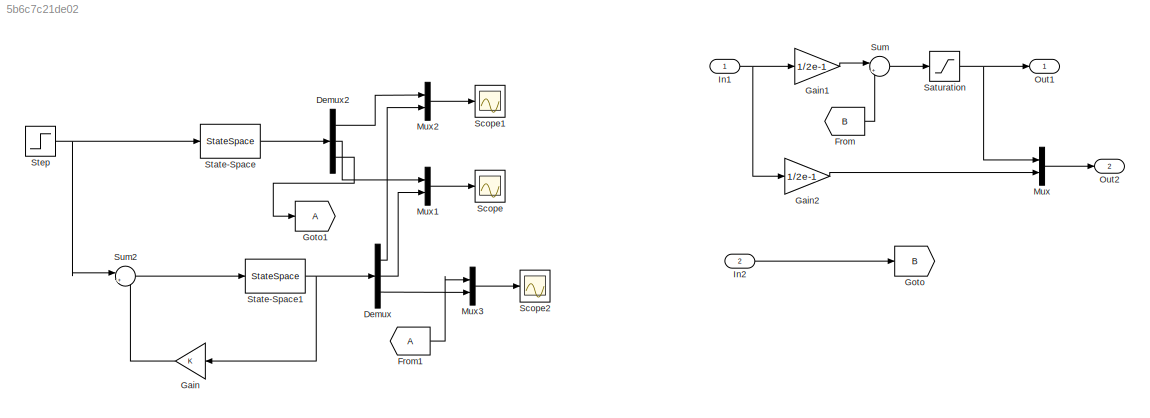
MODEL slx_5b6c7c21de02
KIND model
CONFIG AbsTol = auto
CONFIG EnableMultiTasking = off
CONFIG FixedStep = auto
CONFIG MaxStep = auto
CONFIG MinStep = auto
CONFIG RelTol = 1e-3
CONFIG SampleTimeConstraint = Unconstrained
CONFIG Solver = VariableStepAuto
CONFIG SolverName = VariableStepAuto
CONFIG StartTime = 0.0
CONFIG StopTime = 10.0
BLOCK [Demux] Demux
  Outputs = 3
  Ports = [1, 3]
BLOCK [Demux] Demux2
  Outputs = 3
  Ports = [1, 3]
BLOCK [From] From
  GotoTag = B
BLOCK [From] From1
BLOCK [Gain] Gain
BLOCK [Gain] Gain1
  Gain = 1/2e-1
BLOCK [Gain] Gain2
  Gain = 1/2e-1
BLOCK [Goto] Goto
  GotoTag = B
BLOCK [Goto] Goto1
BLOCK [Inport] In1
BLOCK [Inport] In2
  Port = 2
BLOCK [Mux] Mux
  DisplayOption = bar
  Inputs = 2
  Ports = [2, 1]
BLOCK [Mux] Mux1
  DisplayOption = bar
  Inputs = 2
  Ports = [2, 1]
BLOCK [Mux] Mux2
  DisplayOption = bar
  Inputs = 2
  Ports = [2, 1]
BLOCK [Mux] Mux3
  DisplayOption = bar
  Inputs = 2
  Ports = [2, 1]
BLOCK [Outport] Out1
BLOCK [Outport] Out2
  Port = 2
BLOCK [Saturate] Saturation
  UpperLimit = 5
BLOCK [Scope] Scope
  Floating = off
  NumInputPorts = 1
  Ports = [1]
  ScopeSpecificationString = Simulink.scopes.TimeScopeBlockCfg('CurrentConfiguration', extmgr.ConfigurationSet(extmgr.Configuration('Core','General UI',true),extmgr.Configuration('Core','Source UI',true),extmgr.Configuration('Sources','WiredSimulink',true,'DataLoggingVariableName','ScopeData1'),extmgr.Configuration('Visuals','Time Domain',true),extmgr.Configuration('Tools','Plot Navigation',true),extmgr.Configuration('Tools',...<+40ch>
BLOCK [Scope] Scope1
  Floating = off
  NumInputPorts = 1
  Ports = [1]
  ScopeSpecificationString = Simulink.scopes.TimeScopeBlockCfg('CurrentConfiguration', extmgr.ConfigurationSet(extmgr.Configuration('Core','General UI',true),extmgr.Configuration('Core','Source UI',true),extmgr.Configuration('Sources','WiredSimulink',true),extmgr.Configuration('Visuals','Time Domain',true),extmgr.Configuration('Tools','Plot Navigation',true),extmgr.Configuration('Tools','Measurements',true)),'Version','2020a'...<+1ch>
BLOCK [Scope] Scope2
  Floating = off
  NumInputPorts = 1
  Ports = [1]
  ScopeSpecificationString = Simulink.scopes.TimeScopeBlockCfg('CurrentConfiguration', extmgr.ConfigurationSet(extmgr.Configuration('Core','General UI',true),extmgr.Configuration('Core','Source UI',true),extmgr.Configuration('Sources','WiredSimulink',true,'DataLoggingVariableName','ScopeData2'),extmgr.Configuration('Visuals','Time Domain',true),extmgr.Configuration('Tools','Plot Navigation',true),extmgr.Configuration('Tools',...<+40ch>
BLOCK [StateSpace] State-Space
  InitialCondition = 0
  Ports = [1, 1]
BLOCK [StateSpace] State-Space1
  InitialCondition = 0
  Ports = [1, 1]
BLOCK [Step] Step
  SampleTime = 0
BLOCK [Sum] Sum
  Inputs = |++
  Ports = [2, 1]
BLOCK [Sum] Sum2
  Inputs = |+-
  Ports = [2, 1]
LINE Demux2:1 -> Mux2:1
LINE Demux2:2 -> Mux1:1
LINE Demux2:3 -> Goto1:1
LINE Demux:1 -> Mux2:2
LINE Demux:2 -> Mux1:2
LINE Demux:3 -> Mux3:2
LINE From1:1 -> Mux3:1
LINE From:1 -> Sum:2
LINE Gain1:1 -> Sum:1
LINE Gain2:1 -> Mux:2
LINE Gain:1 -> Sum2:2
NET In1:1 -> Gain1:1, Gain2:1
LINE In2:1 -> Goto:1
LINE Mux1:1 -> Scope:1
LINE Mux2:1 -> Scope1:1
LINE Mux3:1 -> Scope2:1
LINE Mux:1 -> Out2:1
NET Saturation:1 -> Mux:1, Out1:1
NET State-Space1:1 -> Demux:1, Gain:1
LINE State-Space:1 -> Demux2:1
NET Step:1 -> State-Space:1, Sum2:1
LINE Sum2:1 -> State-Space1:1
LINE Sum:1 -> Saturation:1
note: NET lines group one-source signal fan-out (src -> all destinations, sorted); 1:1 wires keep LINE
